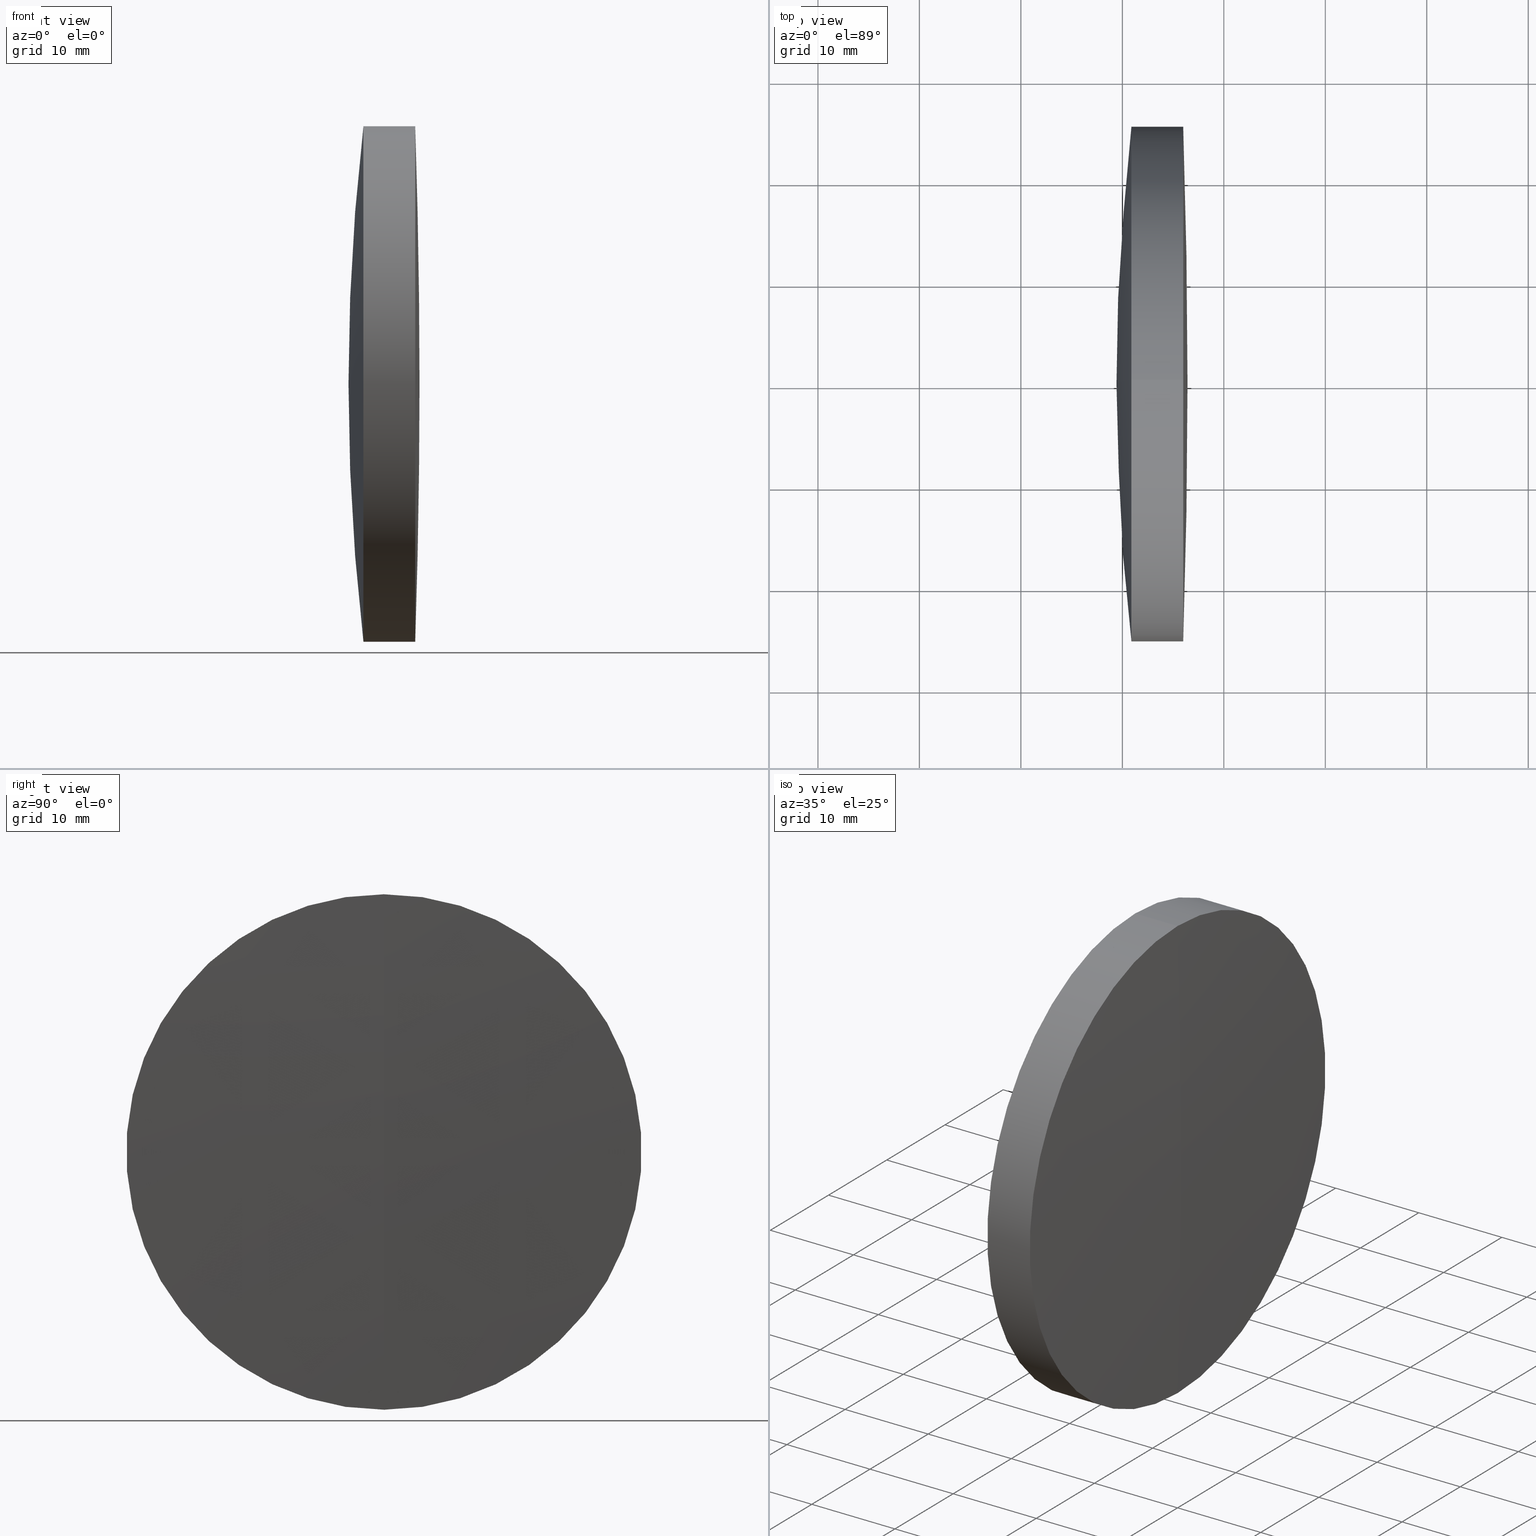
[diagram: canonical four-view strip — front | top / right | iso, engineering-drawing reading convention]
A machine part, canonical four-view strip (front | top / right | iso — engineering-drawing reading convention). The complete STEP part file that produces these views, byte-faithful:
ISO-10303-21;
HEADER;
FILE_DESCRIPTION (( 'STEP AP214' ),
    '1' );
FILE_NAME ('145092.STEP',
    '2019-05-24T09:58:10',
    ( '' ),
    ( '' ),
    'SwSTEP 2.0',
    'SolidWorks 2016',
    '' );
FILE_SCHEMA (( 'AUTOMOTIVE_DESIGN' ));
ENDSEC;

DATA;
#1 = ORIENTED_EDGE ( 'NONE', *, *, #4, .F. ) ;
#2 = CARTESIAN_POINT ( 'NONE',  ( 440.8943219622805100, 0.0000000000000000000, 0.0000000000000000000 ) ) ;
#3 = CARTESIAN_POINT ( 'NONE',  ( 124.5233095260452400, 0.0000000000000000000, 0.0000000000000000000 ) ) ;
#4 = EDGE_CURVE ( 'NONE', #104, #21, #342, .T. ) ;
#5 = DIRECTION ( 'NONE',  ( -1.000000000000000000, -0.0000000000000000000, -0.0000000000000000000 ) ) ;
#6 = CYLINDRICAL_SURFACE ( 'NONE', #64, 25.39999999999986000 ) ;
#7 = DIRECTION ( 'NONE',  ( 0.0000000000000000000, 0.0000000000000000000, 1.000000000000000000 ) ) ;
#8 = DIRECTION ( 'NONE',  ( 0.0000000000000000000, 0.0000000000000000000, 1.000000000000000000 ) ) ;
#9 = FACE_OUTER_BOUND ( 'NONE', #39, .T. ) ;
#10 = DIRECTION ( 'NONE',  ( 0.0000000000000000000, 0.0000000000000000000, 1.000000000000000000 ) ) ;
#11 = DIRECTION ( 'NONE',  ( 0.0000000000000000000, 0.0000000000000000000, 1.000000000000000000 ) ) ;
#12 = CYLINDRICAL_SURFACE ( 'NONE', #343, 25.39999999999999100 ) ;
#13 = CLOSED_SHELL ( 'NONE', ( #268, #205, #236, #128, #291, #45 ) ) ;
#14 = CYLINDRICAL_SURFACE ( 'NONE', #203, 25.39999999999986000 ) ;
#15 = ADVANCED_FACE ( 'NONE', ( #324 ), #6, .T. ) ;
#16 = VERTEX_POINT ( 'NONE', #125 ) ;
#17 = AXIS2_PLACEMENT_3D ( 'NONE', #142, #163, #26 ) ;
#18 = DIRECTION ( 'NONE',  ( 0.0000000000000000000, 0.0000000000000000000, 1.000000000000000000 ) ) ;
#19 = CLOSED_SHELL ( 'NONE', ( #96, #15, #320, #317, #294, #154 ) ) ;
#20 = CARTESIAN_POINT ( 'NONE',  ( 445.9972164850302600, 0.0000000000000000000, 0.0000000000000000000 ) ) ;
#21 = VERTEX_POINT ( 'NONE', #95 ) ;
#22 = DIRECTION ( 'NONE',  ( -1.000000000000000000, -0.0000000000000000000, -0.0000000000000000000 ) ) ;
#23 = DIRECTION ( 'NONE',  ( 0.0000000000000000000, -1.224646799147353200E-016, 1.000000000000000000 ) ) ;
#24 = CIRCLE ( 'NONE', #232, 186.7999999999999500 ) ;
#25 = EDGE_CURVE ( 'NONE', #116, #63, #171, .T. ) ;
#26 = DIRECTION ( 'NONE',  ( 0.0000000000000000000, -1.224646799147353200E-016, 1.000000000000000000 ) ) ;
#27 = CARTESIAN_POINT ( 'NONE',  ( -0.5519199926577972300, 0.0000000000000000000, 0.0000000000000000000 ) ) ;
#28 =( LENGTH_UNIT ( ) NAMED_UNIT ( * ) SI_UNIT ( .MILLI., .METRE. ) );
#29 = AXIS2_PLACEMENT_3D ( 'NONE', #102, #269, #23 ) ;
#30 = SPHERICAL_SURFACE ( 'NONE', #156, 760.0000000000000000 ) ;
#31 = ORIENTED_EDGE ( 'NONE', *, *, #56, .F. ) ;
#32 = FILL_AREA_STYLE_COLOUR ( '', #37 ) ;
#33 = PRODUCT_CONTEXT ( 'NONE', #195, 'mechanical' ) ;
#34 = EDGE_LOOP ( 'NONE', ( #267, #41, #261, #99 ) ) ;
#35 = EDGE_LOOP ( 'NONE', ( #200, #38, #78 ) ) ;
#36 = SURFACE_STYLE_USAGE ( .BOTH. , #115 ) ;
#37 = COLOUR_RGB ( '',1.000000000000000000, 1.000000000000000000, 1.000000000000000000 ) ;
#38 = ORIENTED_EDGE ( 'NONE', *, *, #255, .T. ) ;
#39 = EDGE_LOOP ( 'NONE', ( #290, #83, #262 ) ) ;
#40 = CARTESIAN_POINT ( 'NONE',  ( 442.6868520807731200, 0.0000000000000000000, 0.0000000000000000000 ) ) ;
#41 = ORIENTED_EDGE ( 'NONE', *, *, #121, .T. ) ;
#42 = LINE ( 'NONE', #209, #233 ) ;
#43 = MECHANICAL_DESIGN_GEOMETRIC_PRESENTATION_REPRESENTATION (  '', ( #160 ), #287 ) ;
#44 = DIRECTION ( 'NONE',  ( 0.0000000000000000000, 0.0000000000000000000, 1.000000000000000000 ) ) ;
#45 = ADVANCED_FACE ( 'NONE', ( #185 ), #346, .T. ) ;
#46 = CIRCLE ( 'NONE', #29, 760.0000000000000000 ) ;
#47 = AXIS2_PLACEMENT_3D ( 'NONE', #52, #101, #155 ) ;
#48 = CARTESIAN_POINT ( 'NONE',  ( 445.9972164850302600, 0.0000000000000000000, 0.0000000000000000000 ) ) ;
#49 = DIRECTION ( 'NONE',  ( 0.0000000000000000000, -1.000000000000000000, 0.0000000000000000000 ) ) ;
#50 = MANIFOLD_SOLID_BREP ( '��ת3', #19 ) ;
#51 = EDGE_CURVE ( 'NONE', #21, #104, #248, .T. ) ;
#52 = CARTESIAN_POINT ( 'NONE',  ( 257.6217824430913800, 0.0000000000000000000, 2.168404344971008900E-016 ) ) ;
#53 = ORIENTED_EDGE ( 'NONE', *, *, #4, .T. ) ;
#54 = CARTESIAN_POINT ( 'NONE',  ( 445.9972164850302600, 3.110602869834258700E-015, -25.39999999999983200 ) ) ;
#55 = DIRECTION ( 'NONE',  ( -1.000000000000000000, -0.0000000000000000000, -0.0000000000000000000 ) ) ;
#56 = EDGE_CURVE ( 'NONE', #21, #67, #42, .T. ) ;
#57 = CARTESIAN_POINT ( 'NONE',  ( 257.6217824430913800, 0.0000000000000000000, 2.168404344971008900E-016 ) ) ;
#58 = CIRCLE ( 'NONE', #286, 25.39999999999989200 ) ;
#59 = CARTESIAN_POINT ( 'NONE',  ( 440.8943219622805100, 0.0000000000000000000, 0.0000000000000000000 ) ) ;
#60 = FILL_AREA_STYLE ('',( #32 ) ) ;
#61 =( GEOMETRIC_REPRESENTATION_CONTEXT ( 3 ) GLOBAL_UNCERTAINTY_ASSIGNED_CONTEXT ( ( #311 ) ) GLOBAL_UNIT_ASSIGNED_CONTEXT ( ( #28, #79, #281 ) ) REPRESENTATION_CONTEXT ( 'NONE', 'WORKASPACE' ) );
#62 = SPHERICAL_SURFACE ( 'NONE', #66, 219.8000000000000400 ) ;
#63 = VERTEX_POINT ( 'NONE', #176 ) ;
#64 = AXIS2_PLACEMENT_3D ( 'NONE', #68, #22, #18 ) ;
#65 = SURFACE_STYLE_FILL_AREA ( #108 ) ;
#66 = AXIS2_PLACEMENT_3D ( 'NONE', #139, #137, #305 ) ;
#67 = VERTEX_POINT ( 'NONE', #345 ) ;
#68 = CARTESIAN_POINT ( 'NONE',  ( -0.5519199926577972300, 0.0000000000000000000, 0.0000000000000000000 ) ) ;
#69 = FACE_OUTER_BOUND ( 'NONE', #299, .T. ) ;
#70 = VERTEX_POINT ( 'NONE', #71 ) ;
#71 = CARTESIAN_POINT ( 'NONE',  ( 444.4217824430913300, 0.0000000000000000000, 1.165504153853337900E-014 ) ) ;
#72 = VECTOR ( 'NONE', #244, 1000.000000000000000 ) ;
#73 = STYLED_ITEM ( 'NONE', ( #149 ), #228 ) ;
#74 = VERTEX_POINT ( 'NONE', #241 ) ;
#75 = DIRECTION ( 'NONE',  ( 0.0000000000000000000, 1.000000000000000000, 0.0000000000000000000 ) ) ;
#76 = DIRECTION ( 'NONE',  ( 0.0000000000000000000, 0.0000000000000000000, 1.000000000000000000 ) ) ;
#77 = CARTESIAN_POINT ( 'NONE',  ( 257.6217824430913800, 0.0000000000000000000, 2.168404344971008900E-016 ) ) ;
#78 = ORIENTED_EDGE ( 'NONE', *, *, #92, .F. ) ;
#79 =( NAMED_UNIT ( * ) PLANE_ANGLE_UNIT ( ) SI_UNIT ( $, .RADIAN. ) );
#80 = AXIS2_PLACEMENT_3D ( 'NONE', #57, #245, #7 ) ;
#81 = DIRECTION ( 'NONE',  ( -1.000000000000000000, -0.0000000000000000000, -0.0000000000000000000 ) ) ;
#82 = FACE_OUTER_BOUND ( 'NONE', #204, .T. ) ;
#83 = ORIENTED_EDGE ( 'NONE', *, *, #181, .T. ) ;
#84 =( LENGTH_UNIT ( ) NAMED_UNIT ( * ) SI_UNIT ( .MILLI., .METRE. ) );
#85 = EDGE_CURVE ( 'NONE', #67, #105, #279, .T. ) ;
#86 = PRODUCT_DEFINITION_SHAPE ( 'NONE', 'NONE',  #111 ) ;
#87 =( GEOMETRIC_REPRESENTATION_CONTEXT ( 3 ) GLOBAL_UNCERTAINTY_ASSIGNED_CONTEXT ( ( #173 ) ) GLOBAL_UNIT_ASSIGNED_CONTEXT ( ( #253, #117, #112 ) ) REPRESENTATION_CONTEXT ( 'NONE', 'WORKASPACE' ) );
#88 = APPLICATION_CONTEXT ( 'automotive_design' ) ;
#89 = ORIENTED_EDGE ( 'NONE', *, *, #121, .F. ) ;
#90 = APPLICATION_PROTOCOL_DEFINITION ( 'draft international standard', 'automotive_design', 1998, #195 ) ;
#91 = SURFACE_STYLE_USAGE ( .BOTH. , #151 ) ;
#92 = EDGE_CURVE ( 'NONE', #114, #74, #207, .T. ) ;
#93 = DIRECTION ( 'NONE',  ( 0.0000000000000000000, 0.0000000000000000000, 1.000000000000000000 ) ) ;
#94 = EDGE_LOOP ( 'NONE', ( #316, #175, #296 ) ) ;
#95 = CARTESIAN_POINT ( 'NONE',  ( 445.9972164850302600, 0.0000000000000000000, 25.39999999999983200 ) ) ;
#96 = ADVANCED_FACE ( 'NONE', ( #265 ), #30, .T. ) ;
#97 =( GEOMETRIC_REPRESENTATION_CONTEXT ( 3 ) GLOBAL_UNCERTAINTY_ASSIGNED_CONTEXT ( ( #238 ) ) GLOBAL_UNIT_ASSIGNED_CONTEXT ( ( #84, #283, #146 ) ) REPRESENTATION_CONTEXT ( 'NONE', 'WORKASPACE' ) );
#98 = CIRCLE ( 'NONE', #275, 186.7999999999999500 ) ;
#99 = ORIENTED_EDGE ( 'NONE', *, *, #272, .F. ) ;
#100 = EDGE_CURVE ( 'NONE', #133, #21, #212, .T. ) ;
#101 = DIRECTION ( 'NONE',  ( 0.0000000000000000000, -1.000000000000000000, 0.0000000000000000000 ) ) ;
#102 = CARTESIAN_POINT ( 'NONE',  ( -313.5782175569086700, 0.0000000000000000000, 0.0000000000000000000 ) ) ;
#103 = LINE ( 'NONE', #162, #194 ) ;
#104 = VERTEX_POINT ( 'NONE', #54 ) ;
#105 = VERTEX_POINT ( 'NONE', #328 ) ;
#106 = DIRECTION ( 'NONE',  ( -1.000000000000000000, -0.0000000000000000000, -0.0000000000000000000 ) ) ;
#107 = DIRECTION ( 'NONE',  ( 0.0000000000000000000, 0.0000000000000000000, 1.000000000000000000 ) ) ;
#108 = FILL_AREA_STYLE ('',( #276 ) ) ;
#109 = SPHERICAL_SURFACE ( 'NONE', #120, 760.0000000000000000 ) ;
#110 = CARTESIAN_POINT ( 'NONE',  ( 257.6217824430913800, 0.0000000000000000000, 2.168404344971008900E-016 ) ) ;
#111 = PRODUCT_DEFINITION ( 'δ֪', '', #318, #273 ) ;
#112 =( NAMED_UNIT ( * ) SI_UNIT ( $, .STERADIAN. ) SOLID_ANGLE_UNIT ( ) );
#113 = PRESENTATION_STYLE_ASSIGNMENT (( #91 ) ) ;
#114 = VERTEX_POINT ( 'NONE', #159 ) ;
#115 = SURFACE_SIDE_STYLE ('',( #224 ) ) ;
#116 = VERTEX_POINT ( 'NONE', #127 ) ;
#117 =( NAMED_UNIT ( * ) PLANE_ANGLE_UNIT ( ) SI_UNIT ( $, .RADIAN. ) );
#118 = SHAPE_DEFINITION_REPRESENTATION ( #86, #228 ) ;
#119 = ORIENTED_EDGE ( 'NONE', *, *, #272, .T. ) ;
#120 = AXIS2_PLACEMENT_3D ( 'NONE', #184, #271, #161 ) ;
#121 = EDGE_CURVE ( 'NONE', #116, #325, #126, .T. ) ;
#122 = EDGE_LOOP ( 'NONE', ( #145, #331, #153 ) ) ;
#123 =( NAMED_UNIT ( * ) PLANE_ANGLE_UNIT ( ) SI_UNIT ( $, .RADIAN. ) );
#124 = DIRECTION ( 'NONE',  ( -1.000000000000000000, -0.0000000000000000000, -0.0000000000000000000 ) ) ;
#125 = CARTESIAN_POINT ( 'NONE',  ( 444.4217824430913300, 0.0000000000000000000, 1.165504153853337900E-014 ) ) ;
#126 = LINE ( 'NONE', #323, #72 ) ;
#127 = CARTESIAN_POINT ( 'NONE',  ( 442.6868520807731200, 3.110602869834276900E-015, -25.39999999999999900 ) ) ;
#128 = ADVANCED_FACE ( 'NONE', ( #9 ), #256, .T. ) ;
#129 = PRODUCT ( '145092', '145092', '', ( #33 ) ) ;
#130 = ORIENTED_EDGE ( 'NONE', *, *, #51, .T. ) ;
#131 = CYLINDRICAL_SURFACE ( 'NONE', #217, 25.39999999999999100 ) ;
#132 = DIRECTION ( 'NONE',  ( 0.0000000000000000000, -1.000000000000000000, 0.0000000000000000000 ) ) ;
#133 = VERTEX_POINT ( 'NONE', #329 ) ;
#134 = ORIENTED_EDGE ( 'NONE', *, *, #25, .F. ) ;
#135 = EDGE_CURVE ( 'NONE', #70, #67, #201, .T. ) ;
#136 = DIRECTION ( 'NONE',  ( 0.0000000000000000000, 0.0000000000000000000, 1.000000000000000000 ) ) ;
#137 = DIRECTION ( 'NONE',  ( 0.0000000000000000000, 1.000000000000000000, 0.0000000000000000000 ) ) ;
#138 = COLOUR_RGB ( '',1.000000000000000000, 1.000000000000000000, 1.000000000000000000 ) ;
#139 = CARTESIAN_POINT ( 'NONE',  ( 659.2217824430913400, 0.0000000000000000000, -4.361997626380887500E-015 ) ) ;
#140 = DIRECTION ( 'NONE',  ( -1.000000000000000000, -0.0000000000000000000, -0.0000000000000000000 ) ) ;
#141 = AXIS2_PLACEMENT_3D ( 'NONE', #59, #140, #274 ) ;
#142 = CARTESIAN_POINT ( 'NONE',  ( 659.2217824430913400, 0.0000000000000000000, -4.361997626380887500E-015 ) ) ;
#143 = FACE_OUTER_BOUND ( 'NONE', #239, .T. ) ;
#144 = AXIS2_PLACEMENT_3D ( 'NONE', #20, #260, #234 ) ;
#145 = ORIENTED_EDGE ( 'NONE', *, *, #100, .F. ) ;
#146 =( NAMED_UNIT ( * ) SI_UNIT ( $, .STERADIAN. ) SOLID_ANGLE_UNIT ( ) );
#147 = APPLICATION_PROTOCOL_DEFINITION ( 'draft international standard', 'automotive_design', 1998, #88 ) ;
#148 = ORIENTED_EDGE ( 'NONE', *, *, #322, .F. ) ;
#149 = PRESENTATION_STYLE_ASSIGNMENT (( #36 ) ) ;
#150 = AXIS2_PLACEMENT_3D ( 'NONE', #215, #183, #178 ) ;
#151 = SURFACE_SIDE_STYLE ('',( #197 ) ) ;
#152 = ORIENTED_EDGE ( 'NONE', *, *, #25, .T. ) ;
#153 = ORIENTED_EDGE ( 'NONE', *, *, #51, .F. ) ;
#154 = ADVANCED_FACE ( 'NONE', ( #289 ), #109, .T. ) ;
#155 = DIRECTION ( 'NONE',  ( 0.0000000000000000000, 0.0000000000000000000, -1.000000000000000000 ) ) ;
#156 = AXIS2_PLACEMENT_3D ( 'NONE', #240, #266, #270 ) ;
#157 = PRESENTATION_STYLE_ASSIGNMENT (( #304 ) ) ;
#158 = CIRCLE ( 'NONE', #314, 25.39999999999999500 ) ;
#159 = CARTESIAN_POINT ( 'NONE',  ( 440.8943219622805100, 0.0000000000000000000, 25.39999999999991700 ) ) ;
#160 = STYLED_ITEM ( 'NONE', ( #113 ), #50 ) ;
#161 = DIRECTION ( 'NONE',  ( 0.0000000000000000000, 0.0000000000000000000, 1.000000000000000000 ) ) ;
#162 = CARTESIAN_POINT ( 'NONE',  ( -0.5519199926577972300, 3.110602869834259900E-015, -25.39999999999986000 ) ) ;
#163 = DIRECTION ( 'NONE',  ( -0.0000000000000000000, 1.000000000000000000, 1.224646799147353200E-016 ) ) ;
#164 = CARTESIAN_POINT ( 'NONE',  ( 442.6868520807730600, 0.0000000000000000000, 0.0000000000000000000 ) ) ;
#165 = EDGE_CURVE ( 'NONE', #133, #104, #46, .T. ) ;
#166 = VECTOR ( 'NONE', #221, 1000.000000000000000 ) ;
#167 = DIRECTION ( 'NONE',  ( -0.0000000000000000000, 1.000000000000000000, 1.224646799147353200E-016 ) ) ;
#168 = DIRECTION ( 'NONE',  ( 1.000000000000000000, 0.0000000000000000000, 0.0000000000000000000 ) ) ;
#169 = ORIENTED_EDGE ( 'NONE', *, *, #198, .T. ) ;
#170 = EDGE_LOOP ( 'NONE', ( #285, #53, #251, #190 ) ) ;
#171 = CIRCLE ( 'NONE', #338, 25.39999999999999500 ) ;
#172 = PRESENTATION_LAYER_ASSIGNMENT (  '', '', ( #259 ) ) ;
#173 = UNCERTAINTY_MEASURE_WITH_UNIT (LENGTH_MEASURE( 1.000000000000000100E-005 ), #253, 'distance_accuracy_value', 'NONE');
#174 = CIRCLE ( 'NONE', #227, 25.39999999999999100 ) ;
#175 = ORIENTED_EDGE ( 'NONE', *, *, #263, .T. ) ;
#176 = CARTESIAN_POINT ( 'NONE',  ( 442.6868520807731200, 0.0000000000000000000, 25.39999999999999500 ) ) ;
#177 = EDGE_CURVE ( 'NONE', #16, #63, #98, .T. ) ;
#178 = DIRECTION ( 'NONE',  ( 0.0000000000000000000, 0.0000000000000000000, 1.000000000000000000 ) ) ;
#179 = CIRCLE ( 'NONE', #192, 186.7999999999999500 ) ;
#180 = FACE_OUTER_BOUND ( 'NONE', #94, .T. ) ;
#181 = EDGE_CURVE ( 'NONE', #325, #114, #174, .T. ) ;
#182 = DIRECTION ( 'NONE',  ( 0.0000000000000000000, 0.0000000000000000000, -1.000000000000000000 ) ) ;
#183 = DIRECTION ( 'NONE',  ( -1.000000000000000000, -0.0000000000000000000, -0.0000000000000000000 ) ) ;
#184 = CARTESIAN_POINT ( 'NONE',  ( -313.5782175569086700, 0.0000000000000000000, 0.0000000000000000000 ) ) ;
#185 = FACE_OUTER_BOUND ( 'NONE', #202, .T. ) ;
#186 = ORIENTED_EDGE ( 'NONE', *, *, #181, .F. ) ;
#187 = DIRECTION ( 'NONE',  ( 0.0000000000000000000, -1.224646799147353500E-016, 1.000000000000000000 ) ) ;
#188 = DIRECTION ( 'NONE',  ( -0.0000000000000000000, 1.000000000000000000, 1.224646799147353200E-016 ) ) ;
#189 = DIRECTION ( 'NONE',  ( -1.000000000000000000, -0.0000000000000000000, -0.0000000000000000000 ) ) ;
#190 = ORIENTED_EDGE ( 'NONE', *, *, #198, .F. ) ;
#191 = DIRECTION ( 'NONE',  ( -1.000000000000000000, -0.0000000000000000000, -0.0000000000000000000 ) ) ;
#192 = AXIS2_PLACEMENT_3D ( 'NONE', #312, #167, #336 ) ;
#193 = AXIS2_PLACEMENT_3D ( 'NONE', #213, #132, #182 ) ;
#194 = VECTOR ( 'NONE', #5, 1000.000000000000000 ) ;
#195 = APPLICATION_CONTEXT ( 'automotive_design' ) ;
#196 = AXIS2_PLACEMENT_3D ( 'NONE', #110, #288, #10 ) ;
#197 = SURFACE_STYLE_FILL_AREA ( #295 ) ;
#198 = EDGE_CURVE ( 'NONE', #105, #67, #58, .T. ) ;
#199 = DIRECTION ( 'NONE',  ( 0.0000000000000000000, 1.000000000000000000, 0.0000000000000000000 ) ) ;
#200 = ORIENTED_EDGE ( 'NONE', *, *, #302, .T. ) ;
#201 = CIRCLE ( 'NONE', #47, 186.7999999999999500 ) ;
#202 = EDGE_LOOP ( 'NONE', ( #220, #330, #134 ) ) ;
#203 = AXIS2_PLACEMENT_3D ( 'NONE', #27, #55, #246 ) ;
#204 = EDGE_LOOP ( 'NONE', ( #89, #152, #119, #186 ) ) ;
#205 = ADVANCED_FACE ( 'NONE', ( #284 ), #131, .T. ) ;
#206 = CARTESIAN_POINT ( 'NONE',  ( 257.6217824430913800, 0.0000000000000000000, 2.168404344971008900E-016 ) ) ;
#207 = CIRCLE ( 'NONE', #193, 219.8000000000000400 ) ;
#208 = DIRECTION ( 'NONE',  ( -1.000000000000000000, -0.0000000000000000000, -0.0000000000000000000 ) ) ;
#209 = CARTESIAN_POINT ( 'NONE',  ( -0.5519199926577972300, 0.0000000000000000000, 25.39999999999986000 ) ) ;
#210 = DIRECTION ( 'NONE',  ( 0.0000000000000000000, -1.000000000000000000, 0.0000000000000000000 ) ) ;
#211 = COLOUR_RGB ( '',1.000000000000000000, 1.000000000000000000, 1.000000000000000000 ) ;
#212 = CIRCLE ( 'NONE', #214, 760.0000000000000000 ) ;
#213 = CARTESIAN_POINT ( 'NONE',  ( 659.2217824430913400, 0.0000000000000000000, -4.361997626380887500E-015 ) ) ;
#214 = AXIS2_PLACEMENT_3D ( 'NONE', #242, #49, #297 ) ;
#215 = CARTESIAN_POINT ( 'NONE',  ( 442.6868520807730600, 0.0000000000000000000, 0.0000000000000000000 ) ) ;
#216 = SURFACE_SIDE_STYLE ('',( #65 ) ) ;
#217 = AXIS2_PLACEMENT_3D ( 'NONE', #280, #189, #250 ) ;
#218 = CARTESIAN_POINT ( 'NONE',  ( 442.6868520807731200, 0.0000000000000000000, 0.0000000000000000000 ) ) ;
#219 = SPHERICAL_SURFACE ( 'NONE', #341, 186.7999999999999500 ) ;
#220 = ORIENTED_EDGE ( 'NONE', *, *, #263, .F. ) ;
#221 = DIRECTION ( 'NONE',  ( -1.000000000000000000, -0.0000000000000000000, -0.0000000000000000000 ) ) ;
#222 = CARTESIAN_POINT ( 'NONE',  ( 124.5233095260452400, 0.0000000000000000000, 25.39999999999999100 ) ) ;
#223 = DIRECTION ( 'NONE',  ( 0.0000000000000000000, 0.0000000000000000000, 1.000000000000000000 ) ) ;
#224 = SURFACE_STYLE_FILL_AREA ( #60 ) ;
#225 = CARTESIAN_POINT ( 'NONE',  ( 440.8943219622805100, 3.110602869834267000E-015, -25.39999999999991700 ) ) ;
#226 = ORIENTED_EDGE ( 'NONE', *, *, #100, .T. ) ;
#227 = AXIS2_PLACEMENT_3D ( 'NONE', #2, #191, #223 ) ;
#228 = ADVANCED_BREP_SHAPE_REPRESENTATION ( '145092', ( #306, #50, #237 ), #87 ) ;
#229 = EDGE_CURVE ( 'NONE', #63, #116, #158, .T. ) ;
#230 = SPHERICAL_SURFACE ( 'NONE', #196, 186.7999999999999500 ) ;
#231 = ORIENTED_EDGE ( 'NONE', *, *, #85, .T. ) ;
#232 = AXIS2_PLACEMENT_3D ( 'NONE', #335, #188, #187 ) ;
#233 = VECTOR ( 'NONE', #208, 1000.000000000000000 ) ;
#234 = DIRECTION ( 'NONE',  ( 0.0000000000000000000, 0.0000000000000000000, 1.000000000000000000 ) ) ;
#235 = AXIS2_PLACEMENT_3D ( 'NONE', #206, #199, #93 ) ;
#236 = ADVANCED_FACE ( 'NONE', ( #307 ), #62, .T. ) ;
#237 = AXIS2_PLACEMENT_3D ( 'NONE', #309, #313, #168 ) ;
#238 = UNCERTAINTY_MEASURE_WITH_UNIT (LENGTH_MEASURE( 1.000000000000000100E-005 ), #84, 'distance_accuracy_value', 'NONE');
#239 = EDGE_LOOP ( 'NONE', ( #148, #249, #231 ) ) ;
#240 = CARTESIAN_POINT ( 'NONE',  ( -313.5782175569086700, 0.0000000000000000000, 0.0000000000000000000 ) ) ;
#241 = CARTESIAN_POINT ( 'NONE',  ( 439.4217824430913300, 0.0000000000000000000, 9.096870696248528300E-015 ) ) ;
#242 = CARTESIAN_POINT ( 'NONE',  ( -313.5782175569086700, 0.0000000000000000000, 0.0000000000000000000 ) ) ;
#243 = AXIS2_PLACEMENT_3D ( 'NONE', #344, #75, #44 ) ;
#244 = DIRECTION ( 'NONE',  ( -1.000000000000000000, -0.0000000000000000000, -0.0000000000000000000 ) ) ;
#245 = DIRECTION ( 'NONE',  ( 0.0000000000000000000, 1.000000000000000000, 0.0000000000000000000 ) ) ;
#246 = DIRECTION ( 'NONE',  ( 0.0000000000000000000, 0.0000000000000000000, 1.000000000000000000 ) ) ;
#247 = DIRECTION ( 'NONE',  ( -1.000000000000000000, -0.0000000000000000000, -0.0000000000000000000 ) ) ;
#248 = CIRCLE ( 'NONE', #282, 25.39999999999983200 ) ;
#249 = ORIENTED_EDGE ( 'NONE', *, *, #135, .T. ) ;
#250 = DIRECTION ( 'NONE',  ( 0.0000000000000000000, 0.0000000000000000000, 1.000000000000000000 ) ) ;
#251 = ORIENTED_EDGE ( 'NONE', *, *, #56, .T. ) ;
#252 = ORIENTED_EDGE ( 'NONE', *, *, #85, .F. ) ;
#253 =( LENGTH_UNIT ( ) NAMED_UNIT ( * ) SI_UNIT ( .MILLI., .METRE. ) );
#254 = PRODUCT_RELATED_PRODUCT_CATEGORY ( 'part', '', ( #129 ) ) ;
#255 = EDGE_CURVE ( 'NONE', #325, #74, #334, .T. ) ;
#256 = SPHERICAL_SURFACE ( 'NONE', #243, 219.8000000000000400 ) ;
#257 = EDGE_CURVE ( 'NONE', #104, #105, #103, .T. ) ;
#258 = DIRECTION ( 'NONE',  ( 0.0000000000000000000, 0.0000000000000000000, 1.000000000000000000 ) ) ;
#259 = STYLED_ITEM ( 'NONE', ( #157 ), #306 ) ;
#260 = DIRECTION ( 'NONE',  ( -1.000000000000000000, -0.0000000000000000000, -0.0000000000000000000 ) ) ;
#261 = ORIENTED_EDGE ( 'NONE', *, *, #302, .F. ) ;
#262 = ORIENTED_EDGE ( 'NONE', *, *, #92, .T. ) ;
#263 = EDGE_CURVE ( 'NONE', #16, #116, #24, .T. ) ;
#264 = FILL_AREA_STYLE_COLOUR ( '', #138 ) ;
#265 = FACE_OUTER_BOUND ( 'NONE', #122, .T. ) ;
#266 = DIRECTION ( 'NONE',  ( 0.0000000000000000000, 1.000000000000000000, 0.0000000000000000000 ) ) ;
#267 = ORIENTED_EDGE ( 'NONE', *, *, #229, .T. ) ;
#268 = ADVANCED_FACE ( 'NONE', ( #180 ), #315, .T. ) ;
#269 = DIRECTION ( 'NONE',  ( -0.0000000000000000000, 1.000000000000000000, 1.224646799147353200E-016 ) ) ;
#270 = DIRECTION ( 'NONE',  ( 0.0000000000000000000, 0.0000000000000000000, 1.000000000000000000 ) ) ;
#271 = DIRECTION ( 'NONE',  ( 0.0000000000000000000, 1.000000000000000000, 0.0000000000000000000 ) ) ;
#272 = EDGE_CURVE ( 'NONE', #63, #114, #277, .T. ) ;
#273 = PRODUCT_DEFINITION_CONTEXT ( 'detailed design', #88, 'design' ) ;
#274 = DIRECTION ( 'NONE',  ( 0.0000000000000000000, 0.0000000000000000000, 1.000000000000000000 ) ) ;
#275 = AXIS2_PLACEMENT_3D ( 'NONE', #326, #210, #300 ) ;
#276 = FILL_AREA_STYLE_COLOUR ( '', #211 ) ;
#277 = LINE ( 'NONE', #222, #166 ) ;
#278 = DIRECTION ( 'NONE',  ( 0.0000000000000000000, 1.000000000000000000, 0.0000000000000000000 ) ) ;
#279 = CIRCLE ( 'NONE', #150, 25.39999999999989200 ) ;
#280 = CARTESIAN_POINT ( 'NONE',  ( 124.5233095260452400, 0.0000000000000000000, 0.0000000000000000000 ) ) ;
#281 =( NAMED_UNIT ( * ) SI_UNIT ( $, .STERADIAN. ) SOLID_ANGLE_UNIT ( ) );
#282 = AXIS2_PLACEMENT_3D ( 'NONE', #48, #327, #76 ) ;
#283 =( NAMED_UNIT ( * ) PLANE_ANGLE_UNIT ( ) SI_UNIT ( $, .RADIAN. ) );
#284 = FACE_OUTER_BOUND ( 'NONE', #34, .T. ) ;
#285 = ORIENTED_EDGE ( 'NONE', *, *, #257, .F. ) ;
#286 = AXIS2_PLACEMENT_3D ( 'NONE', #164, #81, #107 ) ;
#287 =( GEOMETRIC_REPRESENTATION_CONTEXT ( 3 ) GLOBAL_UNCERTAINTY_ASSIGNED_CONTEXT ( ( #292 ) ) GLOBAL_UNIT_ASSIGNED_CONTEXT ( ( #293, #123, #319 ) ) REPRESENTATION_CONTEXT ( 'NONE', 'WORKASPACE' ) );
#288 = DIRECTION ( 'NONE',  ( 0.0000000000000000000, 1.000000000000000000, 0.0000000000000000000 ) ) ;
#289 = FACE_OUTER_BOUND ( 'NONE', #303, .T. ) ;
#290 = ORIENTED_EDGE ( 'NONE', *, *, #255, .F. ) ;
#291 = ADVANCED_FACE ( 'NONE', ( #82 ), #12, .T. ) ;
#292 = UNCERTAINTY_MEASURE_WITH_UNIT (LENGTH_MEASURE( 1.000000000000000100E-005 ), #293, 'distance_accuracy_value', 'NONE');
#293 =( LENGTH_UNIT ( ) NAMED_UNIT ( * ) SI_UNIT ( .MILLI., .METRE. ) );
#294 = ADVANCED_FACE ( 'NONE', ( #310 ), #14, .T. ) ;
#295 = FILL_AREA_STYLE ('',( #264 ) ) ;
#296 = ORIENTED_EDGE ( 'NONE', *, *, #229, .F. ) ;
#297 = DIRECTION ( 'NONE',  ( 0.0000000000000000000, 0.0000000000000000000, -1.000000000000000000 ) ) ;
#298 = PRESENTATION_LAYER_ASSIGNMENT (  '', '', ( #160 ) ) ;
#299 = EDGE_LOOP ( 'NONE', ( #347, #337, #169 ) ) ;
#300 = DIRECTION ( 'NONE',  ( 0.0000000000000000000, 0.0000000000000000000, -1.000000000000000000 ) ) ;
#301 = PRESENTATION_LAYER_ASSIGNMENT (  '', '', ( #73 ) ) ;
#302 = EDGE_CURVE ( 'NONE', #114, #325, #321, .T. ) ;
#303 = EDGE_LOOP ( 'NONE', ( #339, #226, #1 ) ) ;
#304 = SURFACE_STYLE_USAGE ( .BOTH. , #216 ) ;
#305 = DIRECTION ( 'NONE',  ( 0.0000000000000000000, 0.0000000000000000000, 1.000000000000000000 ) ) ;
#306 = MANIFOLD_SOLID_BREP ( '��ת1', #13 ) ;
#307 = FACE_OUTER_BOUND ( 'NONE', #35, .T. ) ;
#308 = EDGE_LOOP ( 'NONE', ( #130, #340, #252, #31 ) ) ;
#309 = CARTESIAN_POINT ( 'NONE',  ( 0.0000000000000000000, 0.0000000000000000000, 0.0000000000000000000 ) ) ;
#310 = FACE_OUTER_BOUND ( 'NONE', #170, .T. ) ;
#311 = UNCERTAINTY_MEASURE_WITH_UNIT (LENGTH_MEASURE( 1.000000000000000100E-005 ), #28, 'distance_accuracy_value', 'NONE');
#312 = CARTESIAN_POINT ( 'NONE',  ( 257.6217824430913800, 0.0000000000000000000, 2.168404344971008900E-016 ) ) ;
#313 = DIRECTION ( 'NONE',  ( 0.0000000000000000000, 0.0000000000000000000, 1.000000000000000000 ) ) ;
#314 = AXIS2_PLACEMENT_3D ( 'NONE', #218, #106, #8 ) ;
#315 = SPHERICAL_SURFACE ( 'NONE', #80, 186.7999999999999500 ) ;
#316 = ORIENTED_EDGE ( 'NONE', *, *, #177, .F. ) ;
#317 = ADVANCED_FACE ( 'NONE', ( #143 ), #219, .F. ) ;
#318 = PRODUCT_DEFINITION_FORMATION_WITH_SPECIFIED_SOURCE ( '�κ�', '', #129, .NOT_KNOWN. ) ;
#319 =( NAMED_UNIT ( * ) SI_UNIT ( $, .STERADIAN. ) SOLID_ANGLE_UNIT ( ) );
#320 = ADVANCED_FACE ( 'NONE', ( #69 ), #230, .F. ) ;
#321 = CIRCLE ( 'NONE', #141, 25.39999999999999100 ) ;
#322 = EDGE_CURVE ( 'NONE', #70, #105, #179, .T. ) ;
#323 = CARTESIAN_POINT ( 'NONE',  ( 124.5233095260452400, 3.110602869834276100E-015, -25.39999999999999100 ) ) ;
#324 = FACE_OUTER_BOUND ( 'NONE', #308, .T. ) ;
#325 = VERTEX_POINT ( 'NONE', #225 ) ;
#326 = CARTESIAN_POINT ( 'NONE',  ( 257.6217824430913800, 0.0000000000000000000, 2.168404344971008900E-016 ) ) ;
#327 = DIRECTION ( 'NONE',  ( -1.000000000000000000, -0.0000000000000000000, -0.0000000000000000000 ) ) ;
#328 = CARTESIAN_POINT ( 'NONE',  ( 442.6868520807730600, 3.110602869834277700E-015, -25.40000000000000200 ) ) ;
#329 = CARTESIAN_POINT ( 'NONE',  ( 446.4217824430913300, 0.0000000000000000000, 4.653657836759942600E-014 ) ) ;
#330 = ORIENTED_EDGE ( 'NONE', *, *, #177, .T. ) ;
#331 = ORIENTED_EDGE ( 'NONE', *, *, #165, .T. ) ;
#332 = MECHANICAL_DESIGN_GEOMETRIC_PRESENTATION_REPRESENTATION (  '', ( #259 ), #61 ) ;
#333 = MECHANICAL_DESIGN_GEOMETRIC_PRESENTATION_REPRESENTATION (  '', ( #73 ), #97 ) ;
#334 = CIRCLE ( 'NONE', #17, 219.8000000000000400 ) ;
#335 = CARTESIAN_POINT ( 'NONE',  ( 257.6217824430913800, 0.0000000000000000000, 2.168404344971008900E-016 ) ) ;
#336 = DIRECTION ( 'NONE',  ( 0.0000000000000000000, -1.224646799147353500E-016, 1.000000000000000000 ) ) ;
#337 = ORIENTED_EDGE ( 'NONE', *, *, #322, .T. ) ;
#338 = AXIS2_PLACEMENT_3D ( 'NONE', #40, #124, #258 ) ;
#339 = ORIENTED_EDGE ( 'NONE', *, *, #165, .F. ) ;
#340 = ORIENTED_EDGE ( 'NONE', *, *, #257, .T. ) ;
#341 = AXIS2_PLACEMENT_3D ( 'NONE', #77, #278, #11 ) ;
#342 = CIRCLE ( 'NONE', #144, 25.39999999999983200 ) ;
#343 = AXIS2_PLACEMENT_3D ( 'NONE', #3, #247, #136 ) ;
#344 = CARTESIAN_POINT ( 'NONE',  ( 659.2217824430913400, 0.0000000000000000000, -4.361997626380887500E-015 ) ) ;
#345 = CARTESIAN_POINT ( 'NONE',  ( 442.6868520807730600, 0.0000000000000000000, 25.40000000000000200 ) ) ;
#346 = SPHERICAL_SURFACE ( 'NONE', #235, 186.7999999999999500 ) ;
#347 = ORIENTED_EDGE ( 'NONE', *, *, #135, .F. ) ;
ENDSEC;
END-ISO-10303-21;
